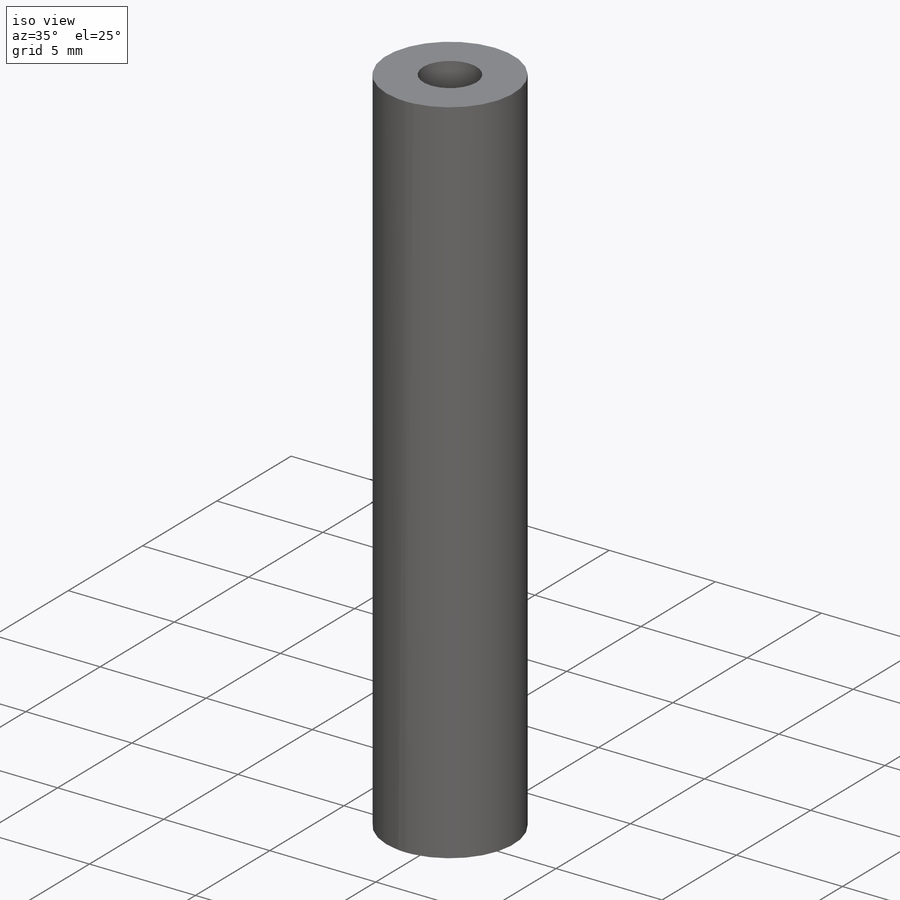
[diagram: iso view]
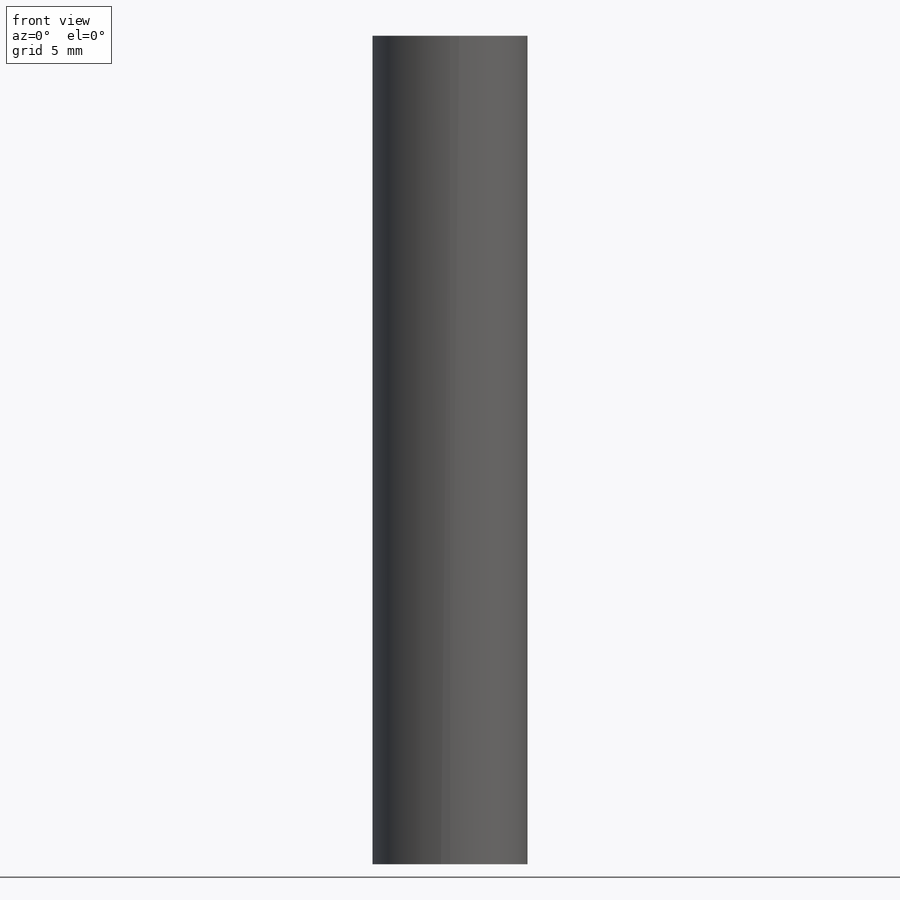
[diagram: front view]
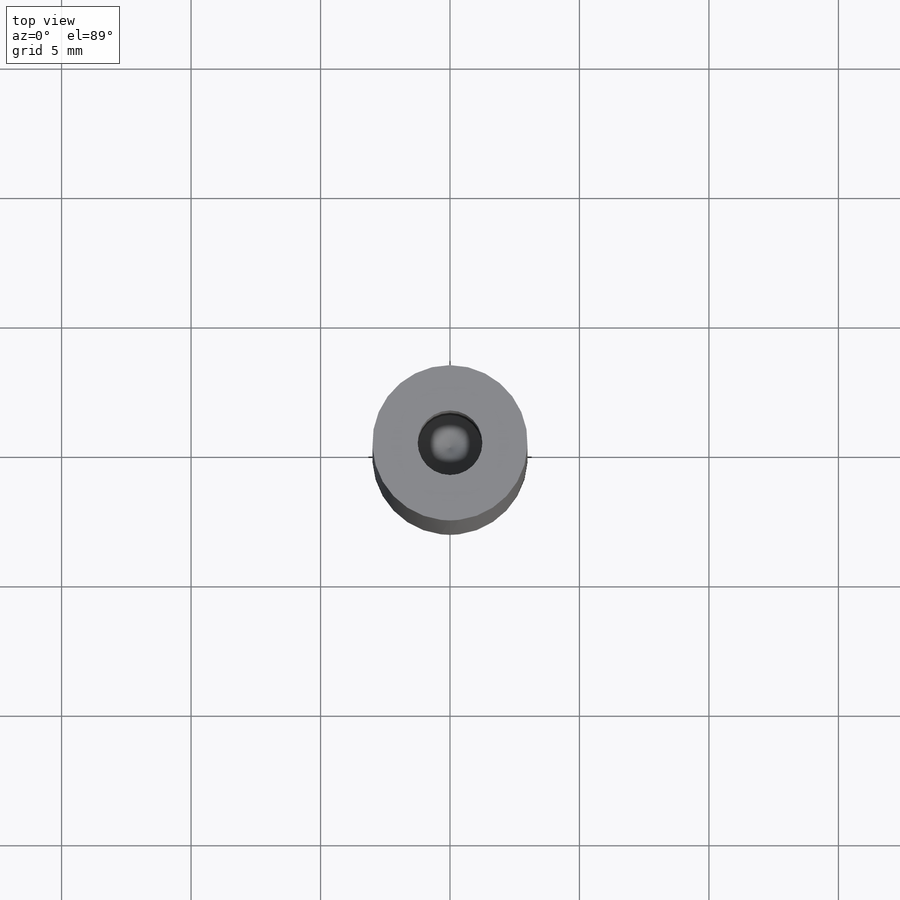
[diagram: top view]
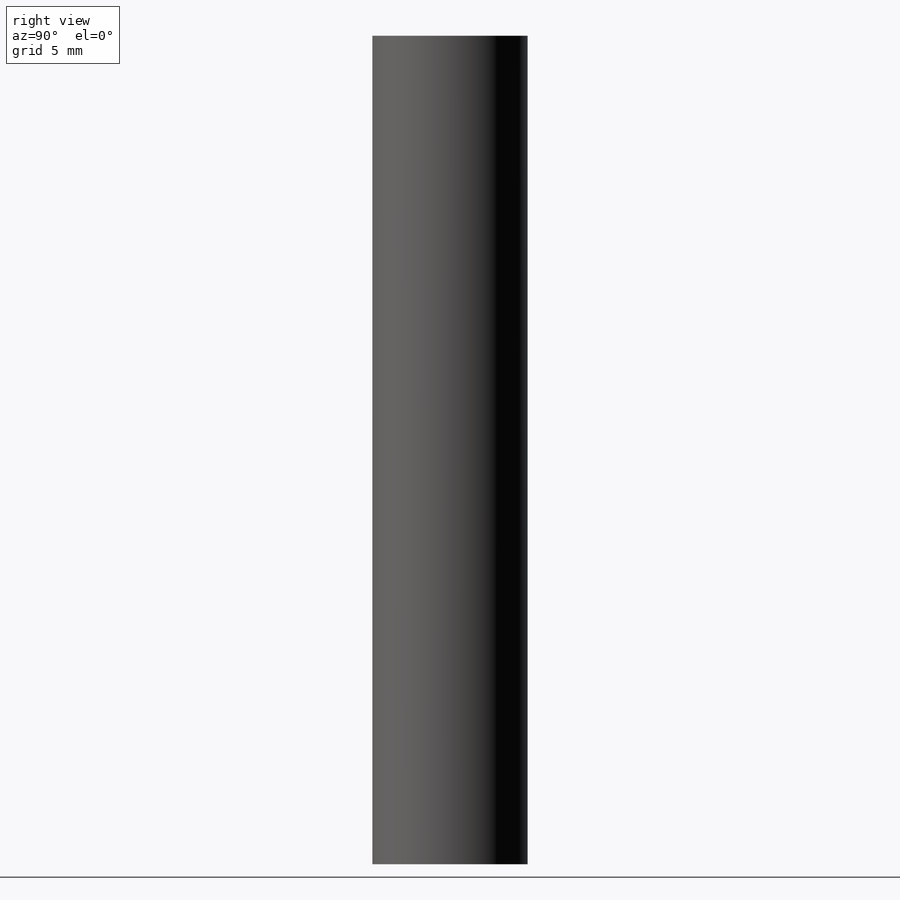
[diagram: right view]
SOLIDWORKS PART (.sldprt)
format: sldprt  version: not decoded by parser v0  size: 162,816 bytes
history: native  units: mm
features: sketch x5, hole x2, material x1, extrude x1 (+11 scaffold rows collapsed)
feature tree (20):
  scaffold x11  (default folders/planes/origin — collapsed)
  material  "Material <not specified>"
  sketch  "Sketch1"  dims[D1=6.0mm]
  extrude  "Boss-Extrude1"  Depth=32mm
  hole  "Tap Drill for M3 Tap1"  Diameter=2.5mm Depth=10mm
  sketch  "Sketch3"
  sketch  "Sketch2"  dims[hole-wizard template sketch: 50 standard entries collapsed; hole parameters above]
  hole  "Tap Drill for M3 Tap2"  Diameter=2.5mm Depth=10mm
  sketch  "Sketch5"
  sketch  "Sketch4"  dims[hole-wizard template sketch: 50 standard entries collapsed; hole parameters above]
decode coverage: 6 of 8 modeling features carry decoded parameters
note: ~ marks probable driven/reference dimensions
note: suppression state not decoded; provenance and decode notes live in map.json
